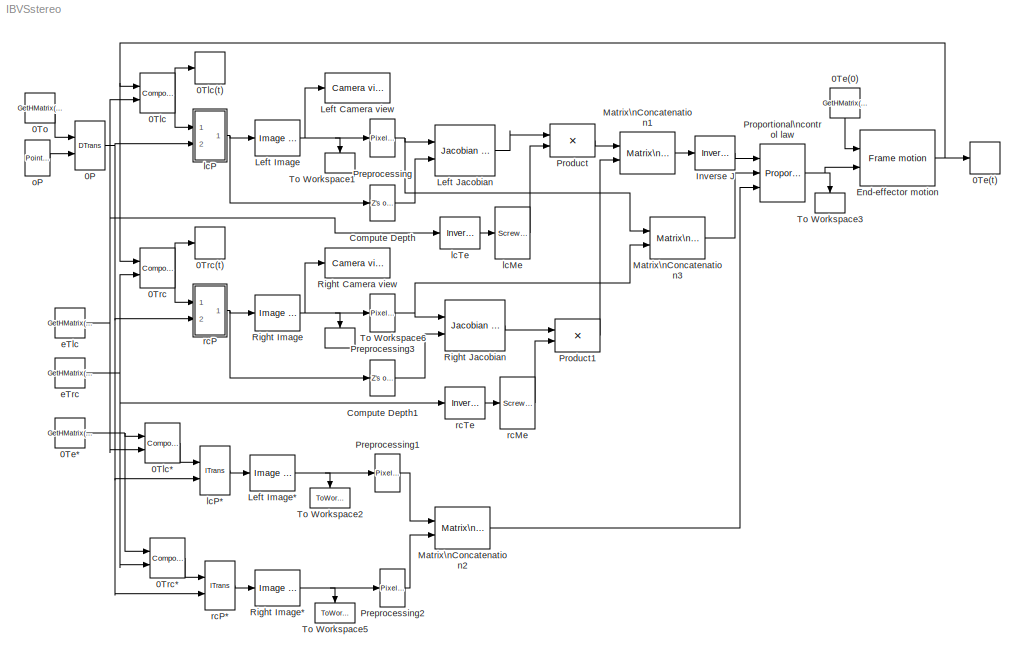
MODEL IBVSstereo
KIND model
BLOCK [Reference] 0P  REF=vs/Features/DTrans  (lib defined in slx_df1018bcac68)
  DataTypeOverride = UseLocalSettings
  MinMaxOverflowLogging = UseLocalSettings
  Permissions = ReadWrite
  Ports = [2, 1]
  RTWFcnNameOpts = Auto
  RTWFileNameOpts = Auto
  RTWSystemCode = Auto
  SID = 1
  ShowPortLabels = on
  SimViewingDevice = off
  SourceBlock = vs/Features/DTrans
  SourceType = SubSystem
  TreatAsAtomicUnit = off
BLOCK [Constant] 0Te(0)
  SID = 2
  Value = GetHMatrix(T0e_0)
  VectorParams1D = off
BLOCK [ToWorkspace] 0Te(t)
  MaxDataPoints = inf
  Ports = [1]
  SID = 3
  SampleTime = -1
  SaveFormat = Structure With Time
  VariableName = T0e
BLOCK [Constant] 0Te*
  SID = 4
  Value = GetHMatrix(T0e_x)
  VectorParams1D = off
BLOCK [Reference] 0Tlc  REF=vs/Pose/Composition  (lib defined in slx_df1018bcac68)
  DataTypeOverride = UseLocalSettings
  MinMaxOverflowLogging = UseLocalSettings
  Permissions = ReadWrite
  Ports = [2, 1]
  RTWFcnNameOpts = Auto
  RTWFileNameOpts = Auto
  RTWSystemCode = Auto
  SID = 5
  ShowPortLabels = on
  SimViewingDevice = off
  SourceBlock = vs/Pose/Composition
  SourceType = SubSystem
  TreatAsAtomicUnit = off
BLOCK [ToWorkspace] 0Tlc(t)
  MaxDataPoints = inf
  Ports = [1]
  SID = 6
  SampleTime = -1
  SaveFormat = Structure With Time
  VariableName = T0lc
BLOCK [Reference] 0Tlc*  REF=vs/Pose/Composition  (lib defined in slx_df1018bcac68)
  DataTypeOverride = UseLocalSettings
  MinMaxOverflowLogging = UseLocalSettings
  Permissions = ReadWrite
  Ports = [2, 1]
  RTWFcnNameOpts = Auto
  RTWFileNameOpts = Auto
  RTWSystemCode = Auto
  SID = 7
  ShowPortLabels = on
  SimViewingDevice = off
  SourceBlock = vs/Pose/Composition
  SourceType = SubSystem
  TreatAsAtomicUnit = off
BLOCK [Constant] 0To
  SID = 8
  Value = GetHMatrix(T0o)
  VectorParams1D = off
BLOCK [Reference] 0Trc  REF=vs/Pose/Composition  (lib defined in slx_df1018bcac68)
  DataTypeOverride = UseLocalSettings
  MinMaxOverflowLogging = UseLocalSettings
  Permissions = ReadWrite
  Ports = [2, 1]
  RTWFcnNameOpts = Auto
  RTWFileNameOpts = Auto
  RTWSystemCode = Auto
  SID = 9
  ShowPortLabels = on
  SimViewingDevice = off
  SourceBlock = vs/Pose/Composition
  SourceType = SubSystem
  TreatAsAtomicUnit = off
BLOCK [ToWorkspace] 0Trc(t)
  MaxDataPoints = inf
  Ports = [1]
  SID = 10
  SampleTime = -1
  SaveFormat = Structure With Time
  VariableName = T0rc
BLOCK [Reference] 0Trc*  REF=vs/Pose/Composition  (lib defined in slx_df1018bcac68)
  DataTypeOverride = UseLocalSettings
  MinMaxOverflowLogging = UseLocalSettings
  Permissions = ReadWrite
  Ports = [2, 1]
  RTWFcnNameOpts = Auto
  RTWFileNameOpts = Auto
  RTWSystemCode = Auto
  SID = 11
  ShowPortLabels = on
  SimViewingDevice = off
  SourceBlock = vs/Pose/Composition
  SourceType = SubSystem
  TreatAsAtomicUnit = off
BLOCK [Reference] Compute Depth  REF=vs/Features/Z's of RSP  (lib defined in slx_df1018bcac68)
  DataTypeOverride = UseLocalSettings
  MinMaxOverflowLogging = UseLocalSettings
  Permissions = ReadWrite
  Ports = [1, 1]
  RTWFcnNameOpts = Auto
  RTWFileNameOpts = Auto
  RTWSystemCode = Auto
  SID = 12
  ShowPortLabels = on
  SimViewingDevice = off
  SourceBlock = vs/Features/Z's of RSP
  SourceType = SubSystem
  TreatAsAtomicUnit = off
BLOCK [Reference] Compute Depth1  REF=vs/Features/Z's of RSP  (lib defined in slx_df1018bcac68)
  DataTypeOverride = UseLocalSettings
  MinMaxOverflowLogging = UseLocalSettings
  Permissions = ReadWrite
  Ports = [1, 1]
  RTWFcnNameOpts = Auto
  RTWFileNameOpts = Auto
  RTWSystemCode = Auto
  SID = 13
  ShowPortLabels = on
  SimViewingDevice = off
  SourceBlock = vs/Features/Z's of RSP
  SourceType = SubSystem
  TreatAsAtomicUnit = off
BLOCK [Reference] End-effector motion  REF=vs/Pose/Frame motion  (lib defined in slx_df1018bcac68)
  DataTypeOverride = UseLocalSettings
  MinMaxOverflowLogging = UseLocalSettings
  Permissions = ReadWrite
  Ports = [2, 1]
  RTWFcnNameOpts = Auto
  RTWFileNameOpts = Auto
  RTWSystemCode = Auto
  SID = 14
  ShowPortLabels = on
  SimViewingDevice = off
  SourceBlock = vs/Pose/Frame motion
  SourceType = SubSystem
  TreatAsAtomicUnit = off
BLOCK [Reference] Inverse J  REF=vs/Jacobian/Inverse J  (lib defined in slx_df1018bcac68)
  DataTypeOverride = UseLocalSettings
  MinMaxOverflowLogging = UseLocalSettings
  Permissions = ReadWrite
  Ports = [1, 1]
  RTWFcnNameOpts = Auto
  RTWFileNameOpts = Auto
  RTWSystemCode = Auto
  SID = 15
  ShowPortLabels = on
  SimViewingDevice = off
  SourceBlock = vs/Jacobian/Inverse J
  SourceType = SubSystem
  TreatAsAtomicUnit = off
BLOCK [Reference] Left Camera view  REF=vs/Camera/Camera view  (lib defined in slx_df1018bcac68)
  Ports = [1]
  SID = 16
  SourceBlock = vs/Camera/Camera view
  em = normal
  ms = 15
  st = -1
  umax = get(lc,'hres')-1
  umin = 0
  vmax = get(lc,'vres')-1
  vmin = 0
BLOCK [Reference] Left Image  REF=vs/Camera/Image of RSP  (lib defined in slx_df1018bcac68)
  Ports = [1, 1]
  SID = 17
  SourceBlock = vs/Camera/Image of RSP
  fu = get(lc,'fu')
  fv = get(lc,'fv')
  u0 = get(lc,'u0')
  v0 = get(lc,'v0')
BLOCK [Reference] Left Image*  REF=vs/Camera/Image of RSP  (lib defined in slx_df1018bcac68)
  Ports = [1, 1]
  SID = 18
  SourceBlock = vs/Camera/Image of RSP
  fu = get(lc,'fu')
  fv = get(lc,'fv')
  u0 = get(lc,'u0')
  v0 = get(lc,'v0')
BLOCK [Reference] Left Jacobian  REF=vs/Jacobian/Jacobian of RSP  (lib defined in slx_df1018bcac68)
  DataTypeOverride = UseLocalSettings
  MinMaxOverflowLogging = UseLocalSettings
  Permissions = ReadWrite
  Ports = [2, 1]
  RTWFcnNameOpts = Auto
  RTWFileNameOpts = Auto
  RTWSystemCode = Auto
  SID = 19
  ShowPortLabels = on
  SimViewingDevice = off
  SourceBlock = vs/Jacobian/Jacobian of RSP
  SourceType = SubSystem
  TreatAsAtomicUnit = off
BLOCK [Reference] Matrix\nConcatenation1  REF=simulink/Math\nOperations/Matrix\nConcatenation
  Ports = [2, 1]
  SID = 20
  SourceBlock = simulink/Math\nOperations/Matrix\nConcatenation
  SourceProductBaseCode = SL
  SourceProductName = Simulink
  SourceType = Matrix Concatenation
  catMethod = Vertical
  numInports = 2
BLOCK [Reference] Matrix\nConcatenation2  REF=simulink/Math\nOperations/Matrix\nConcatenation
  Ports = [2, 1]
  SID = 21
  SourceBlock = simulink/Math\nOperations/Matrix\nConcatenation
  SourceProductBaseCode = SL
  SourceProductName = Simulink
  SourceType = Matrix Concatenation
  catMethod = Vertical
  numInports = 2
BLOCK [Reference] Matrix\nConcatenation3  REF=simulink/Math\nOperations/Matrix\nConcatenation
  Ports = [2, 1]
  SID = 22
  SourceBlock = simulink/Math\nOperations/Matrix\nConcatenation
  SourceProductBaseCode = SL
  SourceProductName = Simulink
  SourceType = Matrix Concatenation
  catMethod = Vertical
  numInports = 2
BLOCK [Reference] Preprocessing  REF=vs/Jacobian/Pixel2s  (lib defined in slx_df1018bcac68)
  Ports = [1, 1]
  SID = 23
  SourceBlock = vs/Jacobian/Pixel2s
  fu = get(lc,'fu')
  fv = get(lc,'fv')
  u0 = get(lc,'u0')
  v0 = get(lc,'v0')
BLOCK [Reference] Preprocessing1  REF=vs/Jacobian/Pixel2s  (lib defined in slx_df1018bcac68)
  Ports = [1, 1]
  SID = 24
  SourceBlock = vs/Jacobian/Pixel2s
  fu = get(lc,'fu')
  fv = get(lc,'fv')
  u0 = get(lc,'u0')
  v0 = get(lc,'v0')
BLOCK [Reference] Preprocessing2  REF=vs/Jacobian/Pixel2s  (lib defined in slx_df1018bcac68)
  Ports = [1, 1]
  SID = 25
  SourceBlock = vs/Jacobian/Pixel2s
  fu = get(rc,'fu')
  fv = get(rc,'fv')
  u0 = get(rc,'u0')
  v0 = get(rc,'v0')
BLOCK [Reference] Preprocessing3  REF=vs/Jacobian/Pixel2s  (lib defined in slx_df1018bcac68)
  Ports = [1, 1]
  SID = 26
  SourceBlock = vs/Jacobian/Pixel2s
  fu = get(rc,'fu')
  fv = get(rc,'fv')
  u0 = get(rc,'u0')
  v0 = get(rc,'v0')
BLOCK [Product] Product
  Multiplication = Matrix(*)
  Ports = [2, 1]
  RndMeth = Floor
  SID = 27
BLOCK [Product] Product1
  Multiplication = Matrix(*)
  Ports = [2, 1]
  RndMeth = Floor
  SID = 28
BLOCK [Reference] Proportional\ncontrol law  REF=vs/Jacobian/Proportional\ncontrol law  (lib defined in slx_df1018bcac68)
  Ports = [3, 1]
  SID = 29
  SourceBlock = vs/Jacobian/Proportional\ncontrol law
  lambda = lambda
BLOCK [Reference] Right Camera view  REF=vs/Camera/Camera view  (lib defined in slx_df1018bcac68)
  Ports = [1]
  SID = 30
  SourceBlock = vs/Camera/Camera view
  em = normal
  ms = 15
  st = -1
  umax = get(rc,'hres')-1
  umin = 0
  vmax = get(rc,'vres')-1
  vmin = 0
BLOCK [Reference] Right Image  REF=vs/Camera/Image of RSP  (lib defined in slx_df1018bcac68)
  Ports = [1, 1]
  SID = 31
  SourceBlock = vs/Camera/Image of RSP
  fu = get(rc,'fu')
  fv = get(rc,'fv')
  u0 = get(rc,'u0')
  v0 = get(rc,'v0')
BLOCK [Reference] Right Image*  REF=vs/Camera/Image of RSP  (lib defined in slx_df1018bcac68)
  Ports = [1, 1]
  SID = 32
  SourceBlock = vs/Camera/Image of RSP
  fu = get(rc,'fu')
  fv = get(rc,'fv')
  u0 = get(rc,'u0')
  v0 = get(rc,'v0')
BLOCK [Reference] Right Jacobian  REF=vs/Jacobian/Jacobian of RSP  (lib defined in slx_df1018bcac68)
  DataTypeOverride = UseLocalSettings
  MinMaxOverflowLogging = UseLocalSettings
  Permissions = ReadWrite
  Ports = [2, 1]
  RTWFcnNameOpts = Auto
  RTWFileNameOpts = Auto
  RTWSystemCode = Auto
  SID = 33
  ShowPortLabels = on
  SimViewingDevice = off
  SourceBlock = vs/Jacobian/Jacobian of RSP
  SourceType = SubSystem
  TreatAsAtomicUnit = off
BLOCK [ToWorkspace] To Workspace1
  MaxDataPoints = inf
  Ports = [1]
  SID = 34
  SampleTime = -1
  SaveFormat = Structure With Time
  VariableName = imgl
BLOCK [ToWorkspace] To Workspace2
  MaxDataPoints = inf
  Ports = [1]
  SID = 35
  SampleTime = -1
  SaveFormat = Structure With Time
  VariableName = imgl_x
BLOCK [ToWorkspace] To Workspace3
  MaxDataPoints = inf
  Ports = [1]
  SID = 36
  SampleTime = -1
  SaveFormat = Structure With Time
  VariableName = eVe
BLOCK [ToWorkspace] To Workspace5
  MaxDataPoints = inf
  Ports = [1]
  SID = 37
  SampleTime = -1
  SaveFormat = Structure With Time
  VariableName = imgr_x
BLOCK [ToWorkspace] To Workspace6
  MaxDataPoints = inf
  Ports = [1]
  SID = 38
  SampleTime = -1
  SaveFormat = Structure With Time
  VariableName = imgr
BLOCK [Constant] eTlc
  SID = 39
  Value = GetHMatrix(Telc)
  VectorParams1D = off
BLOCK [Constant] eTrc
  SID = 40
  Value = GetHMatrix(Terc)
  VectorParams1D = off
BLOCK [Reference] lcMe  REF=vs/Pose/ScrewTrMat  (lib defined in slx_df1018bcac68)
  DataTypeOverride = UseLocalSettings
  MinMaxOverflowLogging = UseLocalSettings
  Permissions = ReadWrite
  Ports = [1, 1]
  RTWFcnNameOpts = Auto
  RTWFileNameOpts = Auto
  RTWSystemCode = Auto
  SID = 41
  ShowPortLabels = on
  SimViewingDevice = off
  SourceBlock = vs/Pose/ScrewTrMat
  SourceType = SubSystem
  TreatAsAtomicUnit = off
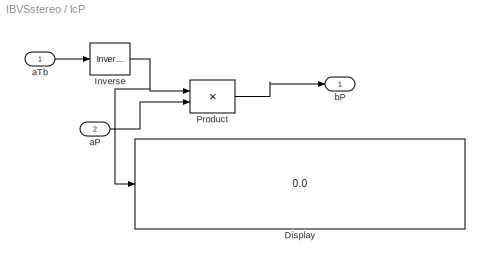
BLOCK [SubSystem] lcP
  AncestorBlock = vs/Features/ITrans
  Ports = [2, 1]
  RequestExecContextInheritance = off
  SID = 42
BLOCK [Reference] lcP*  REF=vs/Features/ITrans  (lib defined in slx_df1018bcac68)
  DataTypeOverride = UseLocalSettings
  MinMaxOverflowLogging = UseLocalSettings
  Permissions = ReadWrite
  Ports = [2, 1]
  RTWFcnNameOpts = Auto
  RTWFileNameOpts = Auto
  RTWSystemCode = Auto
  SID = 43
  ShowPortLabels = on
  SimViewingDevice = off
  SourceBlock = vs/Features/ITrans
  SourceType = SubSystem
  TreatAsAtomicUnit = off
BLOCK [Display] lcP/Display
  Decimation = 1
  Ports = [1]
  SID = 42:3
BLOCK [Reference] lcP/Inverse  REF=vs/Pose/Inverse  (lib defined in slx_df1018bcac68)
  DataTypeOverride = UseLocalSettings
  MinMaxOverflowLogging = UseLocalSettings
  Permissions = ReadWrite
  Ports = [1, 1]
  RTWFcnNameOpts = Auto
  RTWFileNameOpts = Auto
  RTWSystemCode = Auto
  SID = 42:4
  ShowPortLabels = on
  SimViewingDevice = off
  SourceBlock = vs/Pose/Inverse
  SourceType = SubSystem
  TreatAsAtomicUnit = off
BLOCK [Product] lcP/Product
  Multiplication = Matrix(*)
  Ports = [2, 1]
  RndMeth = Floor
  SID = 42:5
BLOCK [Inport] lcP/aP
  IconDisplay = Port number
  Port = 2
  SID = 42:2
BLOCK [Inport] lcP/aTb
  IconDisplay = Port number
  SID = 42:1
BLOCK [Outport] lcP/bP
  IconDisplay = Port number
  SID = 42:6
BLOCK [Reference] lcTe  REF=vs/Pose/Inverse  (lib defined in slx_df1018bcac68)
  DataTypeOverride = UseLocalSettings
  MinMaxOverflowLogging = UseLocalSettings
  Permissions = ReadWrite
  Ports = [1, 1]
  RTWFcnNameOpts = Auto
  RTWFileNameOpts = Auto
  RTWSystemCode = Auto
  SID = 44
  ShowPortLabels = on
  SimViewingDevice = off
  SourceBlock = vs/Pose/Inverse
  SourceType = SubSystem
  TreatAsAtomicUnit = off
BLOCK [Reference] oP  REF=vs/Features/Point Matrix  (lib defined in slx_df1018bcac68)
  Ports = [0, 1]
  SID = 45
  SourceBlock = vs/Features/Point Matrix
  m = coords(p)
BLOCK [Reference] rcMe  REF=vs/Pose/ScrewTrMat  (lib defined in slx_df1018bcac68)
  DataTypeOverride = UseLocalSettings
  MinMaxOverflowLogging = UseLocalSettings
  Permissions = ReadWrite
  Ports = [1, 1]
  RTWFcnNameOpts = Auto
  RTWFileNameOpts = Auto
  RTWSystemCode = Auto
  SID = 46
  ShowPortLabels = on
  SimViewingDevice = off
  SourceBlock = vs/Pose/ScrewTrMat
  SourceType = SubSystem
  TreatAsAtomicUnit = off
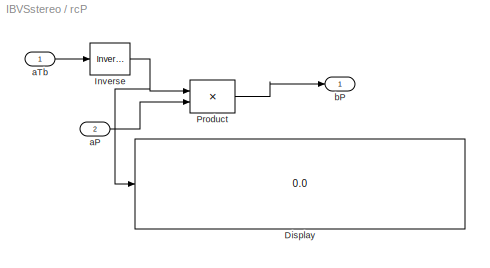
BLOCK [SubSystem] rcP
  AncestorBlock = vs/Features/ITrans
  Ports = [2, 1]
  RequestExecContextInheritance = off
  SID = 47
BLOCK [Reference] rcP*  REF=vs/Features/ITrans  (lib defined in slx_df1018bcac68)
  DataTypeOverride = UseLocalSettings
  MinMaxOverflowLogging = UseLocalSettings
  Permissions = ReadWrite
  Ports = [2, 1]
  RTWFcnNameOpts = Auto
  RTWFileNameOpts = Auto
  RTWSystemCode = Auto
  SID = 48
  ShowPortLabels = on
  SimViewingDevice = off
  SourceBlock = vs/Features/ITrans
  SourceType = SubSystem
  TreatAsAtomicUnit = off
BLOCK [Display] rcP/Display
  Decimation = 1
  Ports = [1]
  SID = 47:3
BLOCK [Reference] rcP/Inverse  REF=vs/Pose/Inverse  (lib defined in slx_df1018bcac68)
  DataTypeOverride = UseLocalSettings
  MinMaxOverflowLogging = UseLocalSettings
  Permissions = ReadWrite
  Ports = [1, 1]
  RTWFcnNameOpts = Auto
  RTWFileNameOpts = Auto
  RTWSystemCode = Auto
  SID = 47:4
  ShowPortLabels = on
  SimViewingDevice = off
  SourceBlock = vs/Pose/Inverse
  SourceType = SubSystem
  TreatAsAtomicUnit = off
BLOCK [Product] rcP/Product
  Multiplication = Matrix(*)
  Ports = [2, 1]
  RndMeth = Floor
  SID = 47:5
BLOCK [Inport] rcP/aP
  IconDisplay = Port number
  Port = 2
  SID = 47:2
BLOCK [Inport] rcP/aTb
  IconDisplay = Port number
  SID = 47:1
BLOCK [Outport] rcP/bP
  IconDisplay = Port number
  SID = 47:6
BLOCK [Reference] rcTe  REF=vs/Pose/Inverse  (lib defined in slx_df1018bcac68)
  DataTypeOverride = UseLocalSettings
  MinMaxOverflowLogging = UseLocalSettings
  Permissions = ReadWrite
  Ports = [1, 1]
  RTWFcnNameOpts = Auto
  RTWFileNameOpts = Auto
  RTWSystemCode = Auto
  SID = 49
  ShowPortLabels = on
  SimViewingDevice = off
  SourceBlock = vs/Pose/Inverse
  SourceType = SubSystem
  TreatAsAtomicUnit = off
NET 0P:1 -> lcP*:2, lcP:2, rcP*:2, rcP:2
LINE 0Te(0):1 -> End-effector motion:1
NET 0Te*:1 -> 0Tlc*:1, 0Trc*:1
LINE 0Tlc*:1 -> lcP*:1
NET 0Tlc:1 -> 0Tlc(t):1, lcP:1
LINE 0To:1 -> 0P:1
LINE 0Trc*:1 -> rcP*:1
NET 0Trc:1 -> 0Trc(t):1, rcP:1
LINE Compute Depth1:1 -> Right Jacobian:2
LINE Compute Depth:1 -> Left Jacobian:2
NET End-effector motion:1 -> 0Te(t):1, 0Tlc:1, 0Trc:1
LINE Inverse J:1 -> Proportional\ncontrol law:1
NET Left Image*:1 -> Preprocessing1:1, To Workspace2:1
NET Left Image:1 -> Left Camera view:1, Preprocessing:1, To Workspace1:1
LINE Left Jacobian:1 -> Product:1
LINE Matrix\nConcatenation1:1 -> Inverse J:1
LINE Matrix\nConcatenation2:1 -> Proportional\ncontrol law:3
LINE Matrix\nConcatenation3:1 -> Proportional\ncontrol law:2
LINE Preprocessing1:1 -> Matrix\nConcatenation2:1
LINE Preprocessing2:1 -> Matrix\nConcatenation2:2
NET Preprocessing3:1 -> Matrix\nConcatenation3:2, Right Jacobian:1
NET Preprocessing:1 -> Left Jacobian:1, Matrix\nConcatenation3:1
LINE Product1:1 -> Matrix\nConcatenation1:2
LINE Product:1 -> Matrix\nConcatenation1:1
NET Proportional\ncontrol law:1 -> End-effector motion:2, To Workspace3:1
NET Right Image*:1 -> Preprocessing2:1, To Workspace5:1
NET Right Image:1 -> Preprocessing3:1, Right Camera view:1, To Workspace6:1
LINE Right Jacobian:1 -> Product1:1
NET eTlc:1 -> 0Tlc*:2, 0Tlc:2, lcTe:1
NET eTrc:1 -> 0Trc*:2, 0Trc:2, rcTe:1
LINE lcMe:1 -> Product:2
LINE lcP*:1 -> Left Image*:1
NET lcP/Inverse:1 -> lcP/Display:1, lcP/Product:1
LINE lcP/Product:1 -> lcP/bP:1
LINE lcP/aP:1 -> lcP/Product:2
LINE lcP/aTb:1 -> lcP/Inverse:1
NET lcP:1 -> Compute Depth:1, Left Image:1
LINE lcTe:1 -> lcMe:1
LINE oP:1 -> 0P:2
LINE rcMe:1 -> Product1:2
LINE rcP*:1 -> Right Image*:1
NET rcP/Inverse:1 -> rcP/Display:1, rcP/Product:1
LINE rcP/Product:1 -> rcP/bP:1
LINE rcP/aP:1 -> rcP/Product:2
LINE rcP/aTb:1 -> rcP/Inverse:1
NET rcP:1 -> Compute Depth1:1, Right Image:1
LINE rcTe:1 -> rcMe:1
note: NET lines group one-source signal fan-out (src -> all destinations, sorted); 1:1 wires keep LINE
